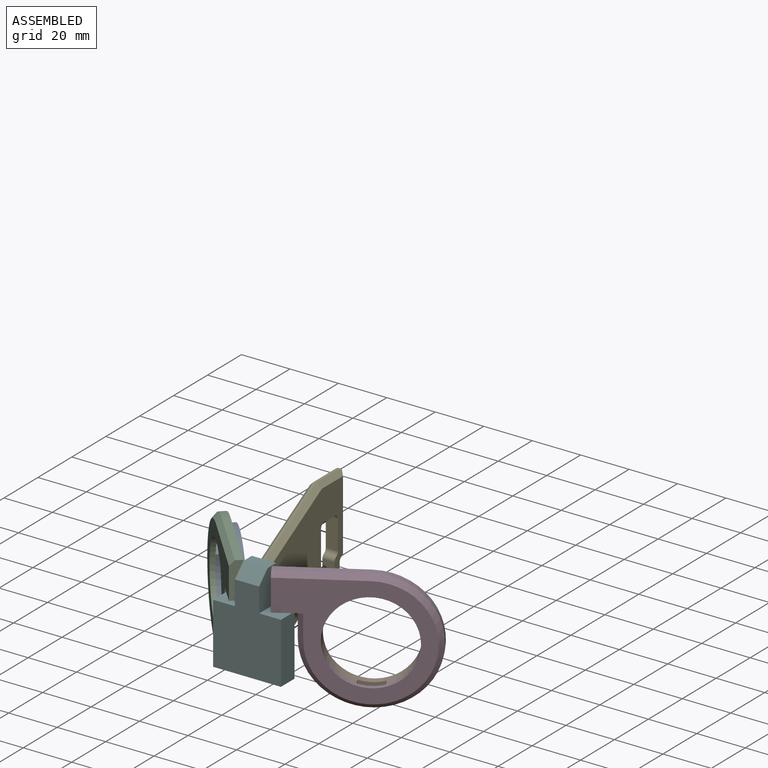
[diagram: assembled view]
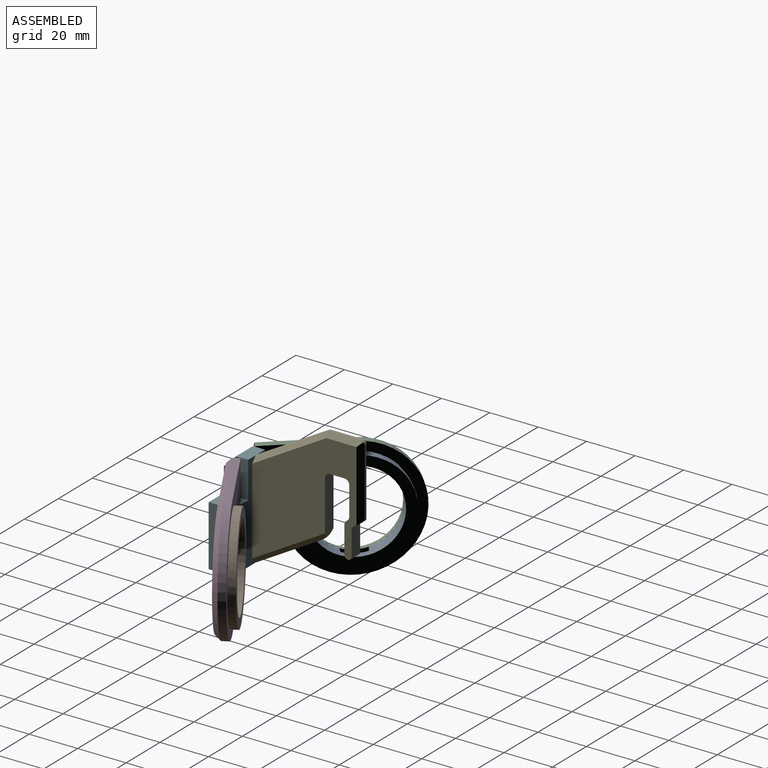
[diagram: assembled view, second angle]
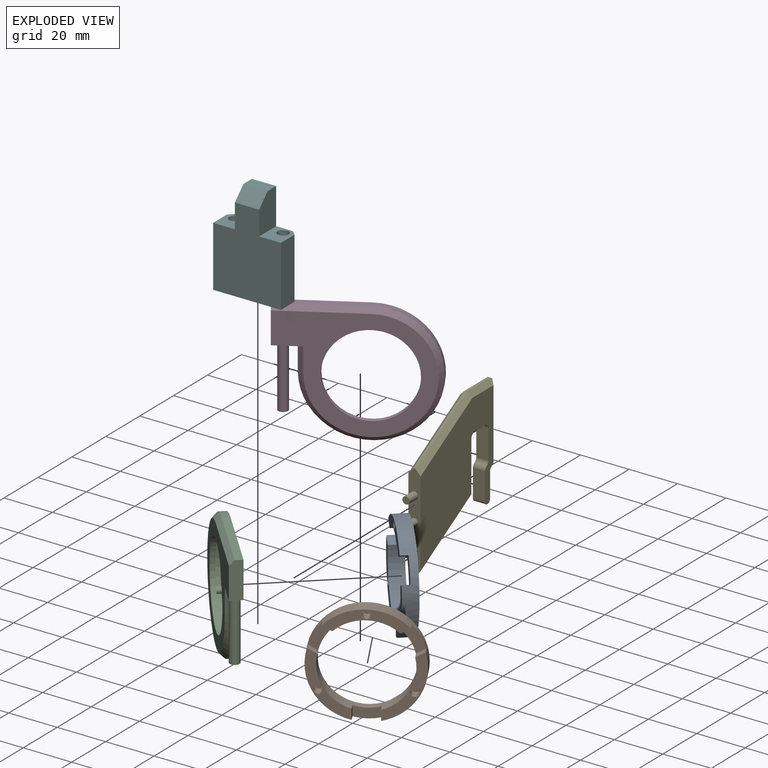
[diagram: exploded view]
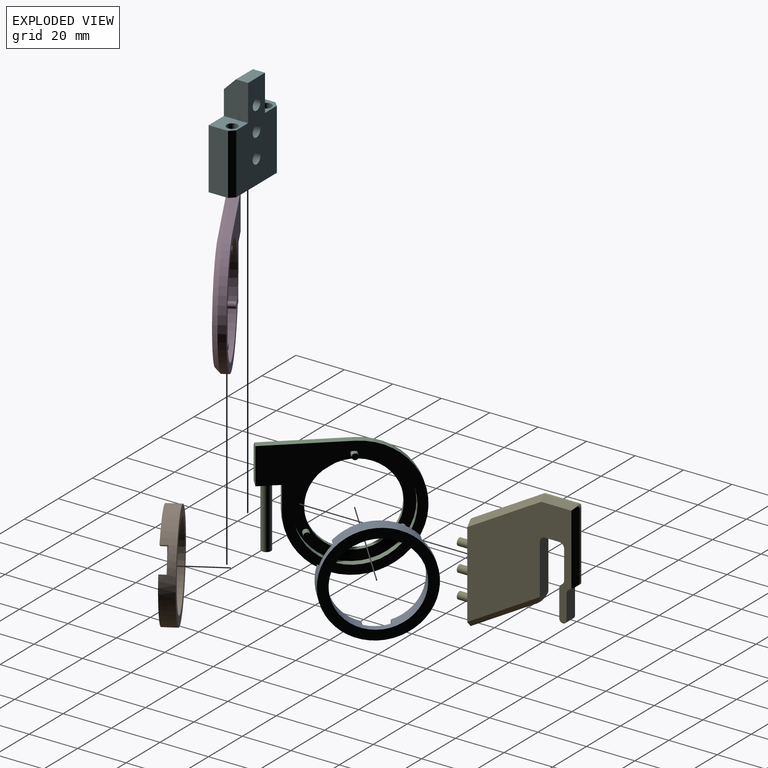
[diagram: exploded view, second angle]
ASSEMBLY  parts=6 mates=7
PART A: 21 faces, bbox 42x6x42 mm
  f0: cylinder r=21mm len=42mm, axis (0,-1,0), area 700.8mm2, adj f1,f2,f3,f5,f6,f7,f8,f9
  f1: plane 26.26x16mm, normal (0,-1,0), area 111.6mm2, adj f0,f4,f7,f13,f19
  f2: plane 26.26x16mm, normal (0,-1,0), area 111.6mm2, adj f0,f4,f9,f12,f17
  f3: plane 30.33x8.55mm, normal (0,-1,0), area 111.6mm2, adj f0,f4,f6,f10,f15
  f4: cylinder r=17mm len=34mm, axis (0,-1,0), area 549.5mm2, adj f1,f2,f3,f5,f6,f7,f8,f9
  f5: plane 42x42mm, normal (0,1,0), area 477.5mm2, adj f0,f4
  f6: plane 3.59x3mm, normal (0.5,0,0.87), area 12.4mm2, adj f0,f3,f4,f8
  f7: plane 3.59x3mm, normal (-0.5,0,-0.87), area 12.4mm2, adj f0,f1,f4,f8
  f8: plane 10.73x8.59mm, normal (0,-1,0), area 40.5mm2, adj f0,f4,f6,f7
  f9: plane 3.59x3mm, normal (0.5,0,-0.87), area 12.4mm2, adj f0,f2,f4,f11
  f10: plane 3.59x3mm, normal (-0.5,0,0.87), area 12.4mm2, adj f0,f3,f4,f11
  f11: plane 10.73x8.59mm, normal (0,-1,0), area 40.5mm2, adj f0,f4,f9,f10
  f12: plane 4.15x3mm, normal (1,0,0), area 12.4mm2, adj f0,f2,f4,f14
  f13: plane 4.15x3mm, normal (-1,0,0), area 12.4mm2, adj f0,f1,f4,f14
  f14: plane 10x4.75mm, normal (0,-1,0), area 40.5mm2, adj f0,f4,f12,f13
  f15: cylinder r=1.5mm len=4mm, axis (0,-1,0), area 37.7mm2, adj f3,f16
  f16: plane 3x3mm, normal (0,-1,0), area 7.1mm2, adj f15
  f17: cylinder r=1.5mm len=4mm, axis (0,-1,0), area 37.7mm2, adj f2,f18
  f18: plane 3x3mm, normal (0,-1,0), area 7.1mm2, adj f17
  f19: cylinder r=1.5mm len=4mm, axis (0,-1,0), area 37.7mm2, adj f1,f20
  f20: plane 3x3mm, normal (0,-1,0), area 7.1mm2, adj f19
PART B: same geometry as A
PART C: 21 faces, bbox 5x50x59 mm
  f0: cylinder r=17mm len=34mm, axis (1,0,0), area 213.6mm2, adj f7,f14
  f1: plane 34x3mm, normal (0,-1,0), area 102mm2, adj f2,f5,f6,f20
  f2: cylinder r=25mm len=50mm, axis (1,0,0), area 353.4mm2, adj f1,f3,f6,f19
  f3: plane 10x3mm, normal (0,0,1), area 30mm2, adj f2,f4,f6,f18
  f4: plane 11x5mm, normal (0,1,0), area 34.4mm2, adj f3,f5,f6,f7,f8,f18
  f5: plane 15x5mm, normal (0,0,1), area 73mm2, adj f1,f4,f6,f7,f20
  f6: plane 59x50mm, normal (-1,0,0), area 814mm2, adj f1,f2,f3,f4,f5,f13
  f7: plane 57x46mm, normal (1,0,0), area 1010.5mm2, adj f0,f4,f5,f18,f19,f20
  f8: cylinder r=2mm len=25mm, axis (0,-1,0), area 314.2mm2, adj f4,f9
  f9: plane 4x4mm, normal (0,1,0), area 12.6mm2, adj f8
  f10: cylinder r=1.25mm len=3mm, axis (-1,0,0), area 23.6mm2, adj f14,f17
  f11: cylinder r=1.25mm len=3mm, axis (-1,0,0), area 23.6mm2, adj f14,f16
  f12: cylinder r=1.25mm len=3mm, axis (-1,0,0), area 23.6mm2, adj f14,f15
  f13: cylinder r=21.25mm len=42.5mm, axis (-1,0,0), area 400.6mm2, adj f6,f14
  f14: plane 42.5x42.5mm, normal (-1,0,0), area 496mm2, adj f0,f10,f11,f12,f13
  f15: plane 2.5x2.5mm, normal (-1,0,0), area 4.9mm2, adj f12
  f16: plane 2.5x2.5mm, normal (-1,0,0), area 4.9mm2, adj f11
  f17: plane 2.5x2.5mm, normal (-1,0,0), area 4.9mm2, adj f10
  f18: plane 10x2mm, normal (0.71,0,0.71), area 28.3mm2, adj f3,f4,f7,f19
  f19: cone r=25mm half-angle=45deg, axis (-1,0,0), area 319.9mm2, adj f2,f7,f18,f20
  f20: plane 34x2mm, normal (0.71,-0.71,0), area 96.2mm2, adj f1,f5,f7,f19
PART D: 21 faces, bbox 5x50x59 mm
  f0: cylinder r=17mm len=34mm, axis (-1,0,0), area 213.6mm2, adj f7,f14
  f1: plane 34x3mm, normal (0,-1,0), area 102mm2, adj f2,f5,f6,f20
  f2: cylinder r=25mm len=50mm, axis (-1,0,0), area 353.4mm2, adj f1,f3,f6,f19
  f3: plane 10x3mm, normal (0,0,1), area 30mm2, adj f2,f4,f6,f18
  f4: plane 11x5mm, normal (0,1,0), area 34.4mm2, adj f3,f5,f6,f7,f8,f18
  f5: plane 15x5mm, normal (0,0,1), area 73mm2, adj f1,f4,f6,f7,f20
  f6: plane 59x50mm, normal (1,0,0), area 814mm2, adj f1,f2,f3,f4,f5,f13
  f7: plane 57x46mm, normal (-1,0,0), area 1010.5mm2, adj f0,f4,f5,f18,f19,f20
  f8: cylinder r=2mm len=25mm, axis (0,-1,0), area 314.2mm2, adj f4,f9
  f9: plane 4x4mm, normal (0,1,0), area 12.6mm2, adj f8
  f10: cylinder r=1.25mm len=3mm, axis (1,0,0), area 23.6mm2, adj f14,f17
  f11: cylinder r=1.25mm len=3mm, axis (1,0,0), area 23.6mm2, adj f14,f16
  f12: cylinder r=1.25mm len=3mm, axis (1,0,0), area 23.6mm2, adj f14,f15
  f13: cylinder r=21.25mm len=42.5mm, axis (1,0,0), area 400.6mm2, adj f6,f14
  f14: plane 42.5x42.5mm, normal (1,0,0), area 496mm2, adj f0,f10,f11,f12,f13
  f15: plane 2.5x2.5mm, normal (1,0,0), area 4.9mm2, adj f12
  f16: plane 2.5x2.5mm, normal (1,0,0), area 4.9mm2, adj f11
  f17: plane 2.5x2.5mm, normal (1,0,0), area 4.9mm2, adj f10
  f18: plane 10x2mm, normal (-0.71,0,0.71), area 28.3mm2, adj f3,f4,f7,f19
  f19: cone r=25mm half-angle=45deg, axis (1,0,0), area 319.9mm2, adj f2,f7,f18,f20
  f20: plane 34x2mm, normal (-0.71,-0.71,0), area 96.2mm2, adj f1,f5,f7,f19
PART E: 37 faces, bbox 5x50x57.3 mm
  f0: plane 13.1x1mm, normal (0,0,1), area 13.1mm2, adj f1,f17,f27,f32
  f1: cylinder r=1.5mm len=1.1mm, axis (-1,0,0), area 0.8mm2, adj f0,f2,f26,f27,f31,f32
  f2: plane 29.65x17.12mm, normal (0,-0.5,0.87), area 34.2mm2, adj f1,f3,f26,f31
  f3: plane 40x5mm, normal (0,-1,0), area 169.6mm2, adj f2,f4,f18,f19,f20,f22,f24,f26
  f4: plane 27.5x15.88mm, normal (0,0.5,-0.87), area 31.8mm2, adj f3,f29,f30,f36
  f5: plane 20.11x5mm, normal (0,1,0), area 100.6mm2, adj f18,f19,f34,f36
  f6: plane 6x5mm, normal (0,0,-1), area 30mm2, adj f18,f19,f34,f35
  f7: plane 11.85x5mm, normal (0,-1,0), area 59.2mm2, adj f8,f18,f19,f35
  f8: cylinder r=2mm len=5mm, axis (-1,0,0), area 10.5mm2, adj f7,f9,f18,f19
  f9: cylinder r=2mm len=5mm, axis (-1,0,0), area 10.5mm2, adj f8,f10,f18,f19
  f10: plane 11.19x5mm, normal (0,-1,0), area 56mm2, adj f9,f11,f18,f19
  f11: cylinder r=1.5mm len=5mm, axis (-1,0,0), area 23.6mm2, adj f10,f12,f18,f19
  f12: plane 10.04x5mm, normal (0,1,0), area 50.2mm2, adj f11,f13,f18,f19
  f13: cylinder r=2mm len=5mm, axis (-1,0,0), area 10.5mm2, adj f12,f14,f18,f19
  f14: plane 5x2mm, normal (0,0.5,-0.87), area 10.4mm2, adj f13,f15,f18,f19,f28,f33
  f15: cylinder r=2mm len=3mm, axis (-1,0,0), area 3.5mm2, adj f14,f16,f28,f33
  f16: plane 27.35x1mm, normal (0,1,0), area 27.3mm2, adj f15,f17,f28,f33
  f17: cylinder r=1.5mm len=1.88mm, axis (-1,0,0), area 3.1mm2, adj f0,f16,f27,f28,f32,f33
  f18: plane 53.01x43mm, normal (1,0,0), area 1323.6mm2, adj f3,f5,f6,f7,f8,f9,f10,f11
  f19: plane 53.01x43mm, normal (-1,0,0), area 1323.6mm2, adj f3,f5,f6,f7,f8,f9,f10,f11
  f20: cylinder r=1.5mm len=5mm, axis (0,1,0), area 47.1mm2, adj f3,f21
  f21: plane 3x3mm, normal (0,-1,0), area 7.1mm2, adj f20
  f22: cylinder r=1.5mm len=5mm, axis (0,1,0), area 47.1mm2, adj f3,f23
  f23: plane 3x3mm, normal (0,-1,0), area 7.1mm2, adj f22
  f24: cylinder r=1.5mm len=5mm, axis (0,1,0), area 47.1mm2, adj f3,f25
  f25: plane 3x3mm, normal (0,-1,0), area 7.1mm2, adj f24
  f26: plane 30.54x19.58mm, normal (-0.71,-0.35,0.61), area 98.8mm2, adj f1,f2,f3,f19,f27
  f27: plane 14.55x2mm, normal (-0.71,0,0.71), area 38.5mm2, adj f0,f1,f17,f19,f26,f28
  f28: plane 30.72x2mm, normal (-0.71,0.71,0), area 83mm2, adj f14,f15,f16,f17,f19,f27
  f29: plane 29.96x19.61mm, normal (-0.71,0.35,-0.61), area 96.1mm2, adj f3,f4,f19,f36
  f30: plane 29.96x19.61mm, normal (0.71,0.35,-0.61), area 96.1mm2, adj f3,f4,f18,f36
  f31: plane 30.54x19.58mm, normal (0.71,-0.35,0.61), area 98.8mm2, adj f1,f2,f3,f18,f32
  f32: plane 14.55x2mm, normal (0.71,0,0.71), area 38.5mm2, adj f0,f1,f17,f18,f31,f33
  f33: plane 30.72x2mm, normal (0.71,0.71,0), area 83mm2, adj f14,f15,f16,f17,f18,f32
  f34: cylinder r=2mm len=5mm, axis (1,0,0), area 15.7mm2, adj f5,f6,f18,f19
  f35: cylinder r=2mm len=5mm, axis (1,0,0), area 15.7mm2, adj f6,f7,f18,f19
  f36: cylinder r=5mm len=5mm, axis (-1,0,0), area 14mm2, adj f4,f5,f18,f19,f29,f30
PART F: 21 faces, bbox 28x10x40 mm
  f0: plane 25x8mm, normal (-1,0,0), area 200mm2, adj f1,f7,f8,f20
  f1: plane 28x10mm, normal (0,0,-1), area 244.2mm2, adj f0,f2,f8,f9,f10,f11,f19,f20
  f2: plane 25x8mm, normal (1,0,0), area 200mm2, adj f1,f3,f8,f19
  f3: plane 10x9mm, normal (0,0,1), area 72.1mm2, adj f2,f4,f8,f9,f11,f19
  f4: plane 15x10mm, normal (1,0,0), area 137.5mm2, adj f3,f5,f8,f9,f18
  f5: plane 10x5mm, normal (0,0,1), area 50mm2, adj f4,f6,f9,f18
  f6: plane 15x10mm, normal (-1,0,0), area 137.5mm2, adj f5,f7,f8,f9,f18
  f7: plane 10x9mm, normal (0,0,1), area 72.1mm2, adj f0,f6,f8,f9,f10,f20
  f8: plane 35x28mm, normal (0,-1,0), area 800mm2, adj f0,f1,f2,f3,f4,f6,f7,f18
  f9: plane 40x24mm, normal (0,1,0), area 702.3mm2, adj f1,f3,f4,f5,f6,f7,f12,f14
  f10: cylinder r=2.25mm len=25mm, axis (0,0,1), area 353.4mm2, adj f1,f7
  f11: cylinder r=2.25mm len=25mm, axis (0,0,1), area 353.4mm2, adj f1,f3
  f12: cylinder r=2.25mm len=8mm, axis (0,1,0), area 113.1mm2, adj f9,f13
  f13: plane 4.5x4.5mm, normal (0,1,0), area 15.9mm2, adj f12
  f14: cylinder r=2.25mm len=8mm, axis (0,1,0), area 113.1mm2, adj f9,f15
  f15: plane 4.5x4.5mm, normal (0,1,0), area 15.9mm2, adj f14
  f16: cylinder r=2.25mm len=8mm, axis (0,1,0), area 113.1mm2, adj f9,f17
  f17: plane 4.5x4.5mm, normal (0,1,0), area 15.9mm2, adj f16
  f18: plane 10x5mm, normal (0,-0.71,0.71), area 70.7mm2, adj f4,f5,f6,f8
  f19: plane 25x2mm, normal (0.71,0.71,0), area 70.7mm2, adj f1,f2,f3,f9
  f20: plane 25x2mm, normal (-0.71,0.71,0), area 70.7mm2, adj f0,f1,f7,f9
PLACE A rot(axis=(-0.33,-0.75,-0.57),75.2deg) t=(-26.36,37.62,19.27)mm
PLACE B rot(axis=(0.24,-0.88,0.41),66.6deg) t=(40.38,30.48,19.27)mm
PLACE C rot(axis=(-0.26,0.68,-0.68),150.4deg) t=(-27.84,36.27,19.27)mm
PLACE D rot(axis=(-0.38,-0.66,0.66),138.8deg) t=(41.39,28.75,19.27)mm
PLACE E t=(1.72,18.79,4.27)mm
PLACE F t=(-9.78,18.79,4.27)mm fixed
MATE revolute A.f17 <-> C.f12  axis (-0.74,-0.67,0) through (-37.45,49.78,9.77)mm
MATE fastened E.f20 <-> F.f16  axis (0,-1,0) through (4.22,18.79,34.27)mm
MATE revolute B.f19 <-> D.f10  axis (0.5,-0.86,0) through (40.38,30.48,38.27)mm
MATE revolute C.f8 <-> F.f10  axis (0,0,1) through (-5.78,15.79,29.27)mm
MATE revolute A.f15 <-> C.f11  axis (-0.74,-0.67,0) through (-15.28,25.46,9.77)mm
MATE revolute B.f15 <-> D.f12  axis (0.5,-0.86,0) through (54.59,38.77,9.77)mm
MATE revolute F.f11 <-> D.f8  axis (0,0,1) through (14.22,15.79,29.27)mm
